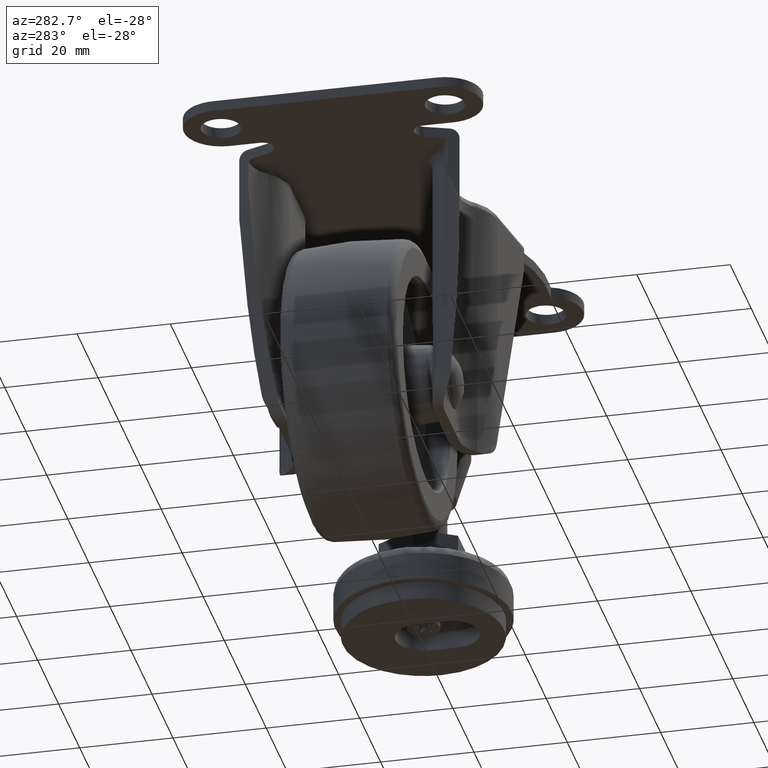
[diagram: clean part render]
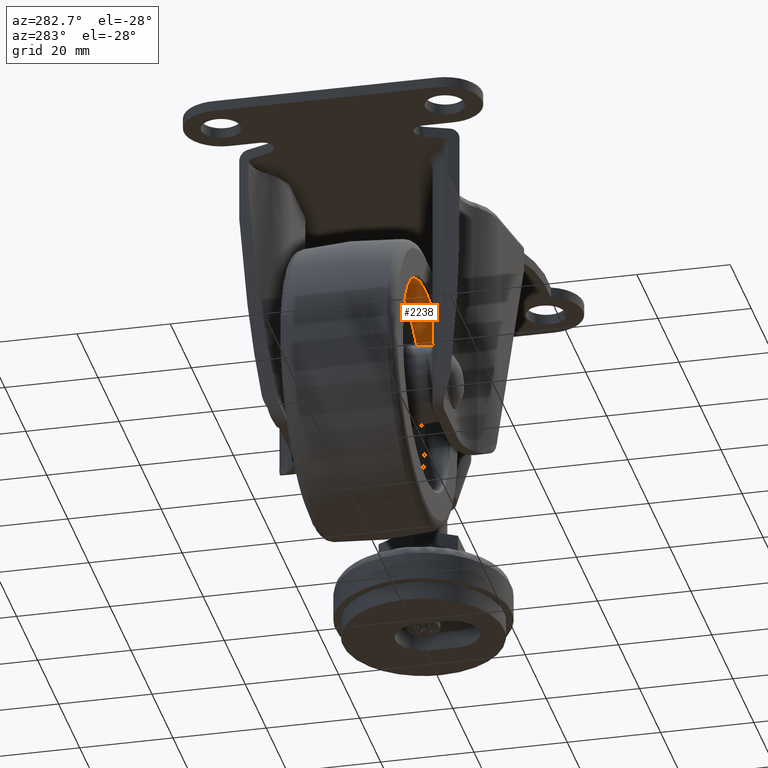
[diagram: same view with one face highlighted and labeled with its STEP entity id]
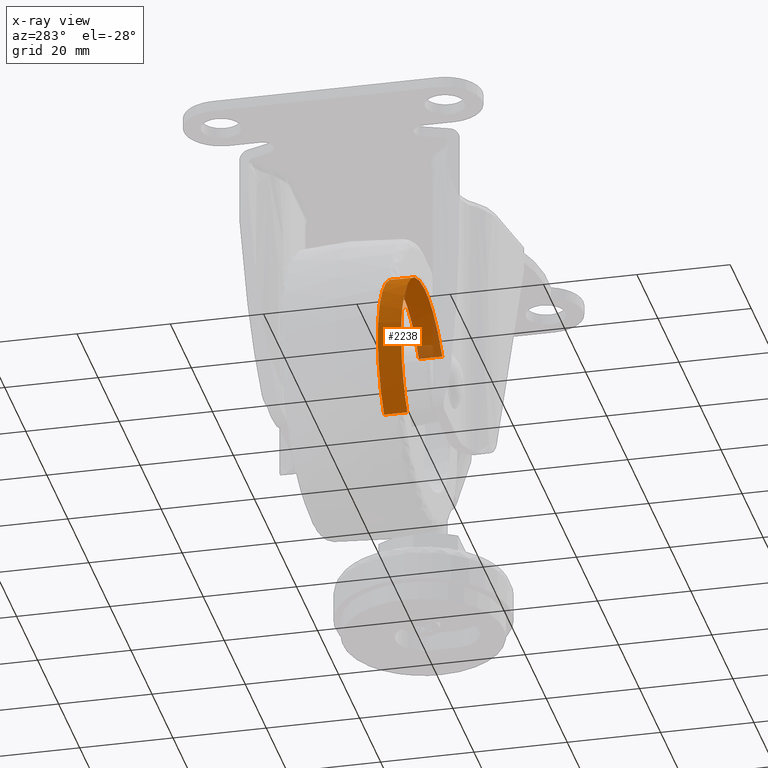
[diagram: x-ray of the same camera — body ghosted, the highlighted face saturated]
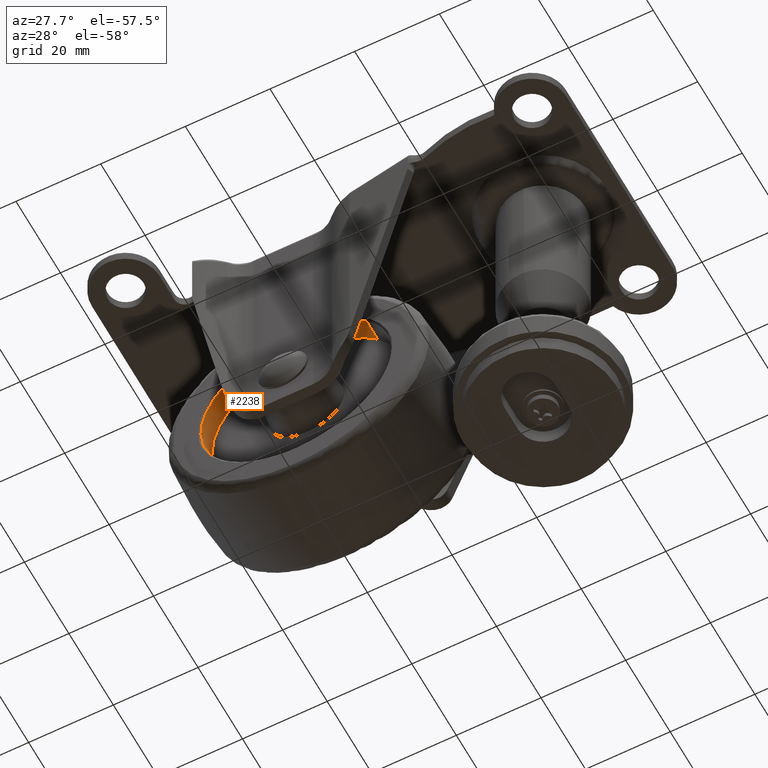
[diagram: same view with one face highlighted and labeled with its STEP entity id]
A machine part, auxiliary view. The second image highlights one B-rep face of the part: STEP entity #2238.
The next image is the same camera in x-ray: the body ghosted, the highlighted face saturated — about 10% of this face is hidden behind the body in this view.
A second angle (auxiliary view) of the same face is appended — the face is thin or edge-on in the first view.
In plain terms, the highlighted face is a freeform B-spline surface patch.
Its self-contained STEP definition (entity closure, byte-faithful):
#1691=CARTESIAN_POINT('',(-16.588696977043458,-12.000000002776121,-15.200777599157821));
#1692=VERTEX_POINT('',#1691);
#1706=CARTESIAN_POINT('',(-22.498178494584138,-12.000000005183800,-0.282735897488081));
#1707=VERTEX_POINT('',#1706);
#1708=CARTESIAN_POINT('',(-22.498178494584138,-12.000000005183797,-0.282735897488081));
#1709=CARTESIAN_POINT('',(-22.390268712937178,-12.000000004182057,-8.869471456412946));
#1710=CARTESIAN_POINT('',(-16.588696977043607,-12.000000002775952,-15.200777599157950));
#1718=(BOUNDED_CURVE()B_SPLINE_CURVE(2,(#1708,#1709,#1710),.UNSPECIFIED.,.F.,.U.)B_SPLINE_CURVE_WITH_KNOTS((3,3),(0.252215704079152,0.368415190226772),.UNSPECIFIED.)CURVE()GEOMETRIC_REPRESENTATION_ITEM()RATIONAL_B_SPLINE_CURVE((0.994854295641986,0.861131229221192,0.853959783165572))REPRESENTATION_ITEM(''));
#1719=EDGE_CURVE('',#1707,#1692,#1718,.T.);
#1764=CARTESIAN_POINT('',(0.000045000000299,-12.0,22.500000000000000));
#1765=VERTEX_POINT('',#1764);
#1766=CARTESIAN_POINT('',(0.000045000000299,-12.0,22.500000000000000));
#1767=CARTESIAN_POINT('',(-22.499954999999694,-12.000000002559533,22.500000000000000));
#1768=CARTESIAN_POINT('',(-22.499954999999691,-12.000000005151430,0.0));
#1769=CARTESIAN_POINT('',(-22.499954999999698,-12.000000005167715,-0.141373529873853));
#1770=CARTESIAN_POINT('',(-22.498178494584138,-12.000000005183797,-0.282735897488081));
#1778=(BOUNDED_CURVE()B_SPLINE_CURVE(2,(#1766,#1767,#1768,#1769,#1770),.UNSPECIFIED.,.F.,.U.)B_SPLINE_CURVE_WITH_KNOTS((3,2,3),(0.0,0.250000000000000,0.252215704079152),.UNSPECIFIED.)CURVE()GEOMETRIC_REPRESENTATION_ITEM()RATIONAL_B_SPLINE_CURVE((1.0,0.707106781186548,1.0,0.997404141201276,0.994854295641986))REPRESENTATION_ITEM(''));
#1779=EDGE_CURVE('',#1765,#1707,#1778,.T.);
#1781=CARTESIAN_POINT('',(16.588786977044059,-12.000000002776121,15.200777599157821));
#1782=VERTEX_POINT('',#1781);
#1783=CARTESIAN_POINT('',(16.588786977044055,-12.000000002776115,15.200777599157819));
#1784=CARTESIAN_POINT('',(9.900283622447805,-12.000000001154881,22.499999999999996));
#1785=CARTESIAN_POINT('',(0.000045000000299,-12.0,22.500000000000000));
#1793=(BOUNDED_CURVE()B_SPLINE_CURVE(2,(#1783,#1784,#1785),.UNSPECIFIED.,.F.,.U.)B_SPLINE_CURVE_WITH_KNOTS((3,3),(0.868415190226772,1.0),.UNSPECIFIED.)CURVE()GEOMETRIC_REPRESENTATION_ITEM()RATIONAL_B_SPLINE_CURVE((0.853959783165572,0.845838806074254,1.0))REPRESENTATION_ITEM(''));
#1794=EDGE_CURVE('',#1782,#1765,#1793,.T.);
#2134=CARTESIAN_POINT('',(16.588787256002501,-7.0,15.200777294727930));
#2135=VERTEX_POINT('',#2134);
#2136=CARTESIAN_POINT('',(16.588786977044059,-12.000000002776121,15.200777599157821));
#2137=CARTESIAN_POINT('',(16.588787256002501,-7.0,15.200777294727930));
#2138=QUASI_UNIFORM_CURVE('',1,(#2136,#2137),.UNSPECIFIED.,.F.,.U.);
#2139=EDGE_CURVE('',#1782,#2135,#2138,.T.);
#2158=CARTESIAN_POINT('',(-16.588697256001911,-7.0,-15.200777294727940));
#2159=VERTEX_POINT('',#2158);
#2173=CARTESIAN_POINT('',(-16.588696977043458,-12.000000002776121,-15.200777599157821));
#2174=CARTESIAN_POINT('',(-16.588697256001911,-7.0,-15.200777294727940));
#2175=QUASI_UNIFORM_CURVE('',1,(#2173,#2174),.UNSPECIFIED.,.F.,.U.);
#2176=EDGE_CURVE('',#1692,#2159,#2175,.T.);
#2183=CARTESIAN_POINT('',(-16.588695078227492,-12.125000005313399,-15.200779671352350));
#2184=CARTESIAN_POINT('',(-31.789474749579853,-12.125000005313396,1.387960406875443));
#2185=CARTESIAN_POINT('',(-15.200734671352050,-12.125000005313399,16.588740078227790));
#2186=CARTESIAN_POINT('',(1.388005406875735,-12.125000005313396,31.789519749580148));
#2187=CARTESIAN_POINT('',(16.588785078228089,-12.125000005313399,15.200779671352350));
#2188=CARTESIAN_POINT('',(-16.588695078227492,-6.871874999867164,-15.200779671352350));
#2189=CARTESIAN_POINT('',(-31.789474749579853,-6.871874999867165,1.387960406875443));
#2190=CARTESIAN_POINT('',(-15.200734671352050,-6.871874999867164,16.588740078227790));
#2191=CARTESIAN_POINT('',(1.388005406875735,-6.871874999867165,31.789519749580148));
#2192=CARTESIAN_POINT('',(16.588785078228089,-6.871874999867164,15.200779671352350));
#2200=(BOUNDED_SURFACE()B_SPLINE_SURFACE(2,1,((#2183,#2188),(#2184,#2189),(#2185,#2190),(#2186,#2191),(#2187,#2192)),.UNSPECIFIED.,.F.,.F.,.U.)B_SPLINE_SURFACE_WITH_KNOTS((3,2,3),(2,2),(0.0,37.279220613578552,74.558441227157104),(0.0,5.253125005446232),.UNSPECIFIED.)GEOMETRIC_REPRESENTATION_ITEM()RATIONAL_B_SPLINE_SURFACE(((1.0,1.0),(0.707106781186548,0.707106781186548),(1.0,1.0),(0.707106781186548,0.707106781186548),(1.0,1.0)))REPRESENTATION_ITEM('')SURFACE());
#2201=ORIENTED_EDGE('',*,*,#1794,.T.);
#2202=ORIENTED_EDGE('',*,*,#1779,.T.);
#2203=ORIENTED_EDGE('',*,*,#1719,.T.);
#2204=ORIENTED_EDGE('',*,*,#2176,.T.);
#2205=CARTESIAN_POINT('',(0.000045000000299,-7.0,22.500000000000000));
#2206=VERTEX_POINT('',#2205);
#2207=CARTESIAN_POINT('',(-16.588697256002085,-7.000000000000001,-15.200777294728097));
#2208=CARTESIAN_POINT('',(-22.499954999999705,-7.0,-8.749769611194459));
#2209=CARTESIAN_POINT('',(-22.499954999999701,-7.0,0.0));
#2210=CARTESIAN_POINT('',(-22.499954999999694,-6.999999999999999,22.500000000000000));
#2211=CARTESIAN_POINT('',(0.000045000000299,-7.0,22.500000000000000));
#2219=(BOUNDED_CURVE()B_SPLINE_CURVE(2,(#2207,#2208,#2209,#2210,#2211),.UNSPECIFIED.,.F.,.U.)B_SPLINE_CURVE_WITH_KNOTS((3,2,3),(0.631584812543588,0.750000000000000,1.0),.UNSPECIFIED.)CURVE()GEOMETRIC_REPRESENTATION_ITEM()RATIONAL_B_SPLINE_CURVE((0.853959783507527,0.861267978357972,1.0,0.707106781186548,1.0))REPRESENTATION_ITEM(''));
#2220=EDGE_CURVE('',#2159,#2206,#2219,.T.);
#2221=ORIENTED_EDGE('',*,*,#2220,.T.);
#2222=CARTESIAN_POINT('',(0.000045000000299,-7.0,22.500000000000000));
#2223=CARTESIAN_POINT('',(9.900283868874942,-7.000000000000001,22.499999999999993));
#2224=CARTESIAN_POINT('',(16.588787256002686,-6.999999999999999,15.200777294728084));
#2232=(BOUNDED_CURVE()B_SPLINE_CURVE(2,(#2222,#2223,#2224),.UNSPECIFIED.,.F.,.U.)B_SPLINE_CURVE_WITH_KNOTS((3,3),(0.0,0.131584812543588),.UNSPECIFIED.)CURVE()GEOMETRIC_REPRESENTATION_ITEM()RATIONAL_B_SPLINE_CURVE((1.0,0.845838802828575,0.853959783507527))REPRESENTATION_ITEM(''));
#2233=EDGE_CURVE('',#2206,#2135,#2232,.T.);
#2234=ORIENTED_EDGE('',*,*,#2233,.T.);
#2235=ORIENTED_EDGE('',*,*,#2139,.F.);
#2236=EDGE_LOOP('',(#2201,#2202,#2203,#2204,#2221,#2234,#2235));
#2237=FACE_OUTER_BOUND('',#2236,.T.);
#2238=ADVANCED_FACE('',(#2237),#2200,.F.);